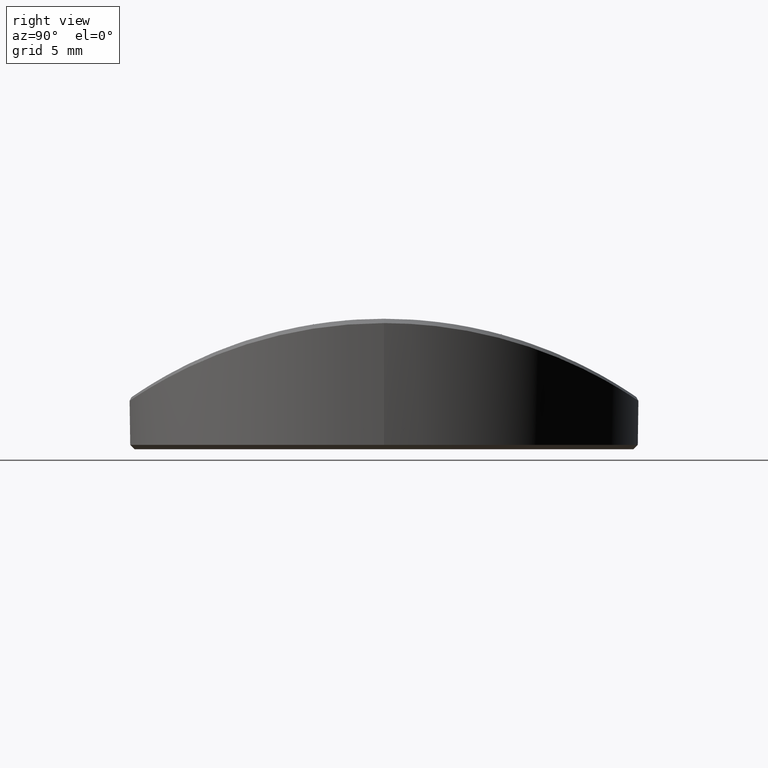
[diagram: clean part render]
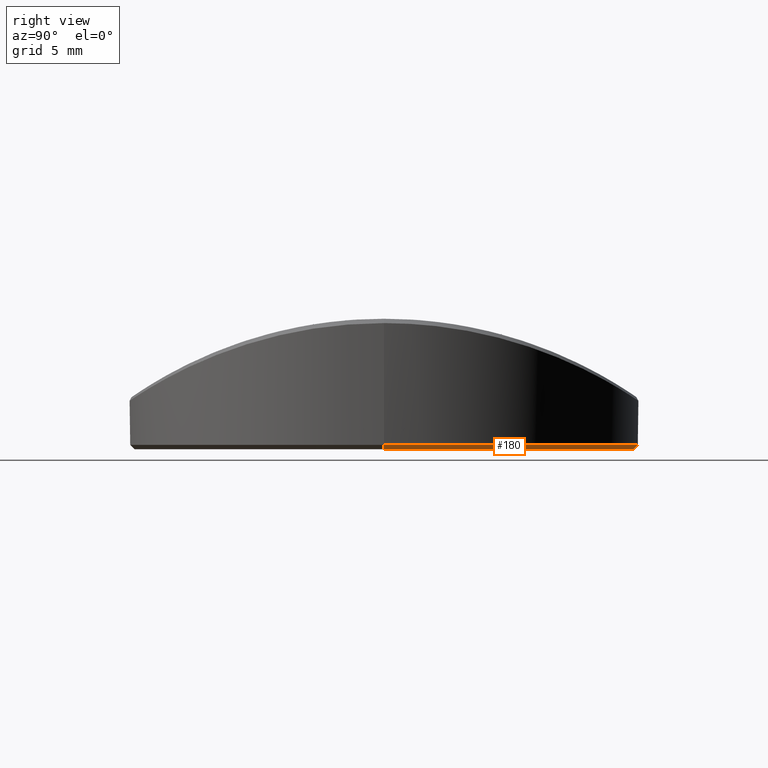
[diagram: same view with one face highlighted and labeled with its STEP entity id]
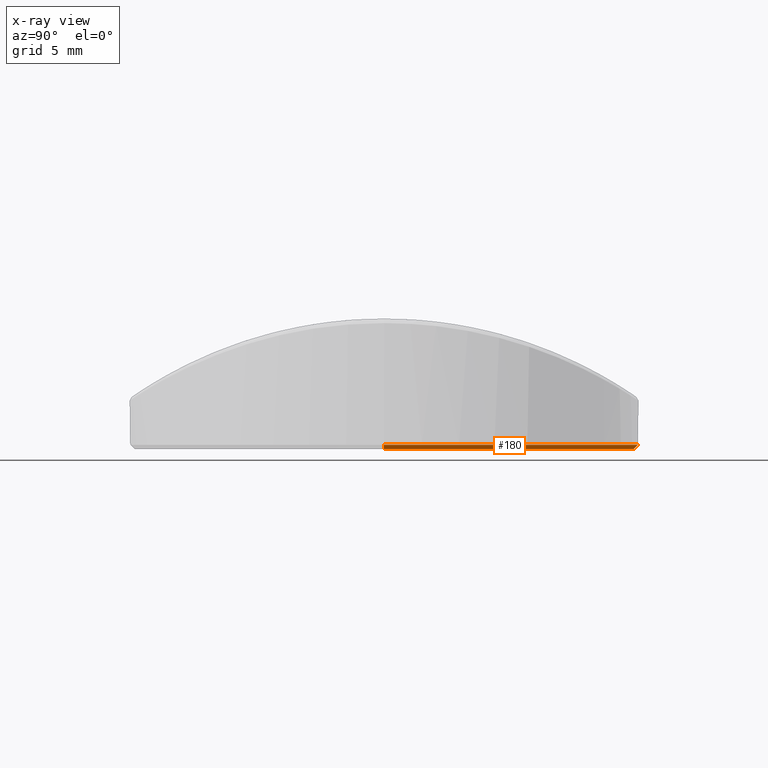
[diagram: x-ray of the same camera — body ghosted, the highlighted face saturated]
A machine part, right view. The second image highlights one B-rep face of the part: STEP entity #180.
The next image is the same camera in x-ray: the body ghosted, the highlighted face saturated — about 0% of this face is hidden behind the body in this view.
In plain terms, the highlighted conical surface has half-angle 45 deg.
Its self-contained STEP definition (entity closure, byte-faithful):
#169 = CARTESIAN_POINT ( 'NONE',  ( 11.49999999999999645, 0.000000000000000000, 0.000000000000000000 ) ) ;
#180 = ADVANCED_FACE ( 'NONE', ( #1429 ), #1277, .T. ) ;
#231 = LINE ( 'NONE', #1115, #2246 ) ;
#306 = ORIENTED_EDGE ( 'NONE', *, *, #820, .F. ) ;
#314 = DIRECTION ( 'NONE',  ( -0.000000000000000000, -0.000000000000000000, 1.000000000000000000 ) ) ;
#446 = CARTESIAN_POINT ( 'NONE',  ( 0.000000000000000000, 0.000000000000000000, 0.2000000000000040079 ) ) ;
#704 = DIRECTION ( 'NONE',  ( -0.7071067811865443531, 8.659560562354895880E-17, 0.7071067811865506814 ) ) ;
#819 = CIRCLE ( 'NONE', #2163, 11.69999999999999929 ) ;
#820 = EDGE_CURVE ( 'NONE', #1391, #2738, #819, .T. ) ;
#825 = CARTESIAN_POINT ( 'NONE',  ( -11.69999999999999929, 0.000000000000000000, 0.2000000000000040079 ) ) ;
#888 = CARTESIAN_POINT ( 'NONE',  ( 11.69999999999999929, 1.432836755002403087E-15, 0.2000000000000040079 ) ) ;
#953 = EDGE_CURVE ( 'NONE', #2753, #1391, #231, .T. ) ;
#991 = EDGE_LOOP ( 'NONE', ( #1839, #1449, #306, #2341 ) ) ;
#1082 = EDGE_CURVE ( 'NONE', #1406, #2738, #2010, .T. ) ;
#1115 = CARTESIAN_POINT ( 'NONE',  ( 11.69999999999999929, 0.000000000000000000, 0.2000000000000040079 ) ) ;
#1212 = CARTESIAN_POINT ( 'NONE',  ( 0.000000000000000000, 0.000000000000000000, 0.2000000000000040079 ) ) ;
#1277 = CONICAL_SURFACE ( 'NONE', #2440, 11.69999999999999929, 0.7853981633974439491 ) ;
#1330 = EDGE_CURVE ( 'NONE', #1406, #2753, #1877, .T. ) ;
#1334 = DIRECTION ( 'NONE',  ( -0.000000000000000000, -0.000000000000000000, 1.000000000000000000 ) ) ;
#1391 = VERTEX_POINT ( 'NONE', #888 ) ;
#1406 = VERTEX_POINT ( 'NONE', #2266 ) ;
#1429 = FACE_OUTER_BOUND ( 'NONE', #991, .T. ) ;
#1449 = ORIENTED_EDGE ( 'NONE', *, *, #1082, .T. ) ;
#1584 = CARTESIAN_POINT ( 'NONE',  ( -11.69999999999999929, 1.432836755002403087E-15, 0.2000000000000040079 ) ) ;
#1825 = DIRECTION ( 'NONE',  ( 1.000000000000000000, 0.000000000000000000, 0.000000000000000000 ) ) ;
#1839 = ORIENTED_EDGE ( 'NONE', *, *, #1330, .F. ) ;
#1877 = CIRCLE ( 'NONE', #2481, 11.49999999999999645 ) ;
#1926 = DIRECTION ( 'NONE',  ( -0.000000000000000000, -0.000000000000000000, -1.000000000000000000 ) ) ;
#2010 = LINE ( 'NONE', #1584, #2063 ) ;
#2063 = VECTOR ( 'NONE', #704, 1000.000000000000114 ) ;
#2163 = AXIS2_PLACEMENT_3D ( 'NONE', #446, #1334, #2221 ) ;
#2221 = DIRECTION ( 'NONE',  ( 1.000000000000000000, 0.000000000000000000, 0.000000000000000000 ) ) ;
#2246 = VECTOR ( 'NONE', #2453, 1000.000000000000114 ) ;
#2266 = CARTESIAN_POINT ( 'NONE',  ( -11.49999999999999645, 1.420590287010929336E-15, 0.000000000000000000 ) ) ;
#2341 = ORIENTED_EDGE ( 'NONE', *, *, #953, .F. ) ;
#2366 = CARTESIAN_POINT ( 'NONE',  ( 0.000000000000000000, 0.000000000000000000, 0.000000000000000000 ) ) ;
#2440 = AXIS2_PLACEMENT_3D ( 'NONE', #1212, #314, #2491 ) ;
#2453 = DIRECTION ( 'NONE',  ( 0.7071067811865443531, 0.000000000000000000, 0.7071067811865506814 ) ) ;
#2481 = AXIS2_PLACEMENT_3D ( 'NONE', #2366, #1926, #1825 ) ;
#2491 = DIRECTION ( 'NONE',  ( 1.000000000000000000, 0.000000000000000000, 0.000000000000000000 ) ) ;
#2738 = VERTEX_POINT ( 'NONE', #825 ) ;
#2753 = VERTEX_POINT ( 'NONE', #169 ) ;